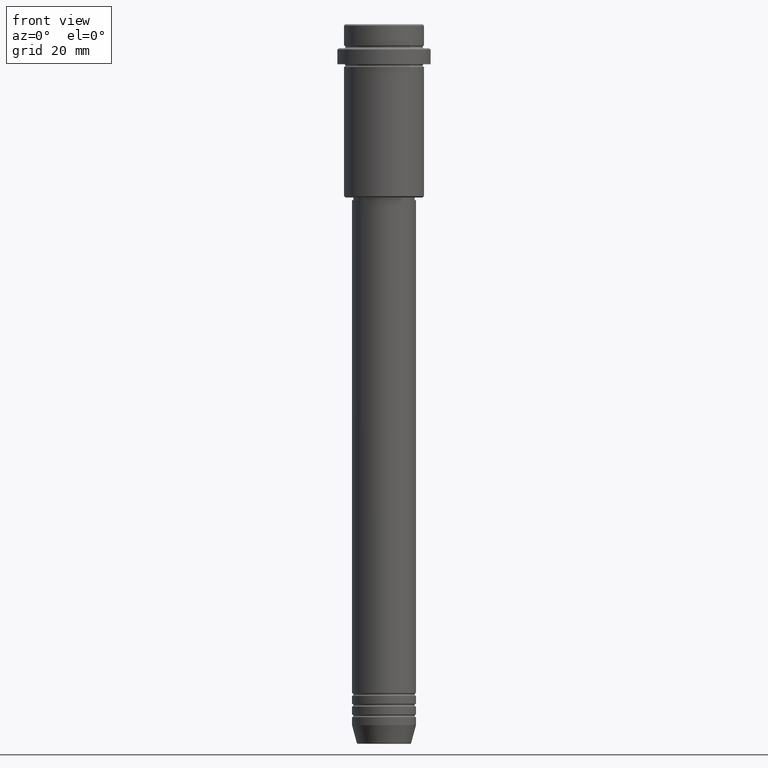
[diagram: clean part render]
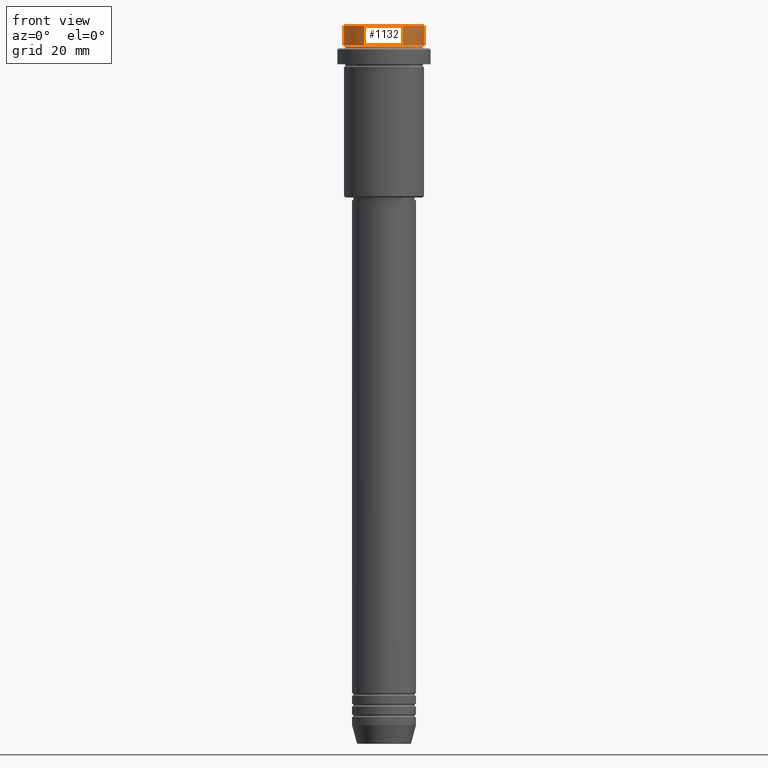
[diagram: same view with one face highlighted and labeled with its STEP entity id]
A machine part, front view. The second image highlights one B-rep face of the part: STEP entity #1132.
In plain terms, the highlighted cylindrical surface (partial cylindrical patch) has radius 15 mm, axis along (-0, -0, 1).
Its self-contained STEP definition (entity closure, byte-faithful):
#26 = EDGE_LOOP ( 'NONE', ( #421, #28, #161, #941 ) ) ;
#28 = ORIENTED_EDGE ( 'NONE', *, *, #444, .T. ) ;
#71 = FACE_OUTER_BOUND ( 'NONE', #26, .T. ) ;
#88 = CARTESIAN_POINT ( 'NONE',  ( 0.000000000000000000, 0.000000000000000000, 0.000000000000000000 ) ) ;
#161 = ORIENTED_EDGE ( 'NONE', *, *, #343, .T. ) ;
#170 = DIRECTION ( 'NONE',  ( -0.000000000000000000, -0.000000000000000000, 1.000000000000000000 ) ) ;
#221 = CIRCLE ( 'NONE', #1017, 15.00000000000000000 ) ;
#343 = EDGE_CURVE ( 'NONE', #948, #1338, #529, .T. ) ;
#344 = CIRCLE ( 'NONE', #1013, 15.00000000000000000 ) ;
#354 = AXIS2_PLACEMENT_3D ( 'NONE', #88, #496, #1059 ) ;
#393 = DIRECTION ( 'NONE',  ( 0.000000000000000000, 0.000000000000000000, -1.000000000000000000 ) ) ;
#421 = ORIENTED_EDGE ( 'NONE', *, *, #1146, .F. ) ;
#444 = EDGE_CURVE ( 'NONE', #568, #948, #344, .T. ) ;
#496 = DIRECTION ( 'NONE',  ( -0.000000000000000000, -0.000000000000000000, 1.000000000000000000 ) ) ;
#529 = LINE ( 'NONE', #752, #767 ) ;
#568 = VERTEX_POINT ( 'NONE', #1417 ) ;
#736 = CARTESIAN_POINT ( 'NONE',  ( 0.000000000000000000, 0.000000000000000000, -7.999999999999998224 ) ) ;
#737 = VERTEX_POINT ( 'NONE', #1007 ) ;
#752 = CARTESIAN_POINT ( 'NONE',  ( 15.00000000000000000, 0.000000000000000000, 0.000000000000000000 ) ) ;
#764 = CARTESIAN_POINT ( 'NONE',  ( 15.00000000000000000, 0.000000000000000000, -0.4999999999999831246 ) ) ;
#767 = VECTOR ( 'NONE', #170, 1000.000000000000000 ) ;
#879 = CARTESIAN_POINT ( 'NONE',  ( 15.00000000000000000, 0.000000000000000000, -7.999999999999998224 ) ) ;
#941 = ORIENTED_EDGE ( 'NONE', *, *, #1165, .T. ) ;
#948 = VERTEX_POINT ( 'NONE', #879 ) ;
#954 = CARTESIAN_POINT ( 'NONE',  ( -15.00000000000000000, 1.836970198721029589E-15, 0.000000000000000000 ) ) ;
#960 = DIRECTION ( 'NONE',  ( -0.000000000000000000, -0.000000000000000000, 1.000000000000000000 ) ) ;
#967 = CARTESIAN_POINT ( 'NONE',  ( 0.000000000000000000, 0.000000000000000000, -0.4999999999999831246 ) ) ;
#1007 = CARTESIAN_POINT ( 'NONE',  ( -15.00000000000000000, 1.836970198721029589E-15, -0.4999999999999831246 ) ) ;
#1013 = AXIS2_PLACEMENT_3D ( 'NONE', #736, #1161, #1060 ) ;
#1017 = AXIS2_PLACEMENT_3D ( 'NONE', #967, #393, #1176 ) ;
#1059 = DIRECTION ( 'NONE',  ( 1.000000000000000000, 0.000000000000000000, 0.000000000000000000 ) ) ;
#1060 = DIRECTION ( 'NONE',  ( 1.000000000000000000, 0.000000000000000000, 0.000000000000000000 ) ) ;
#1073 = CYLINDRICAL_SURFACE ( 'NONE', #354, 15.00000000000000000 ) ;
#1132 = ADVANCED_FACE ( 'NONE', ( #71 ), #1073, .T. ) ;
#1146 = EDGE_CURVE ( 'NONE', #568, #737, #1391, .T. ) ;
#1153 = VECTOR ( 'NONE', #960, 1000.000000000000000 ) ;
#1161 = DIRECTION ( 'NONE',  ( -0.000000000000000000, -0.000000000000000000, 1.000000000000000000 ) ) ;
#1165 = EDGE_CURVE ( 'NONE', #1338, #737, #221, .T. ) ;
#1176 = DIRECTION ( 'NONE',  ( 1.000000000000000000, 0.000000000000000000, 0.000000000000000000 ) ) ;
#1338 = VERTEX_POINT ( 'NONE', #764 ) ;
#1391 = LINE ( 'NONE', #954, #1153 ) ;
#1417 = CARTESIAN_POINT ( 'NONE',  ( -15.00000000000000000, 1.836970198721029589E-15, -7.999999999999998224 ) ) ;